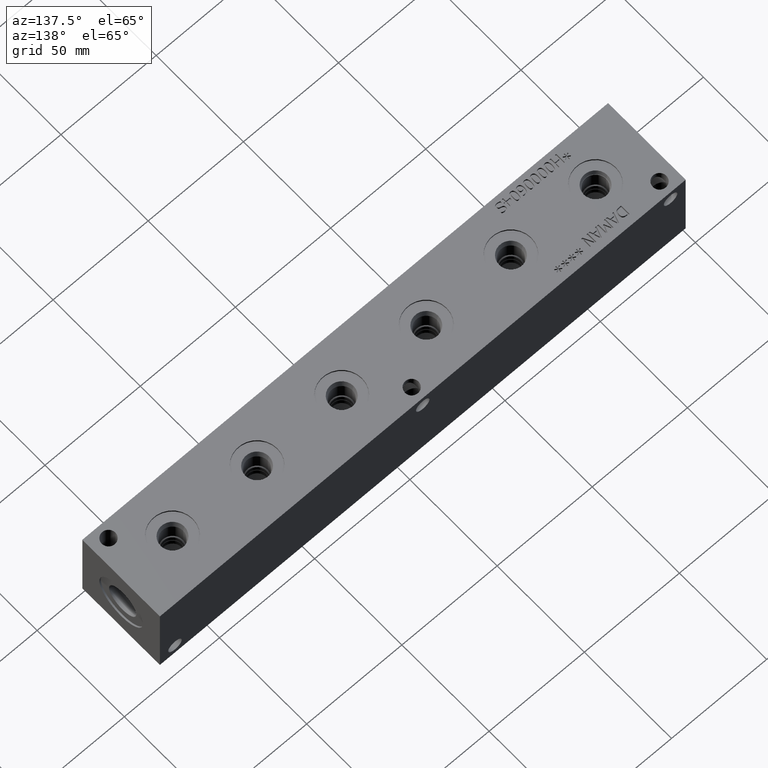
[diagram: clean part render]
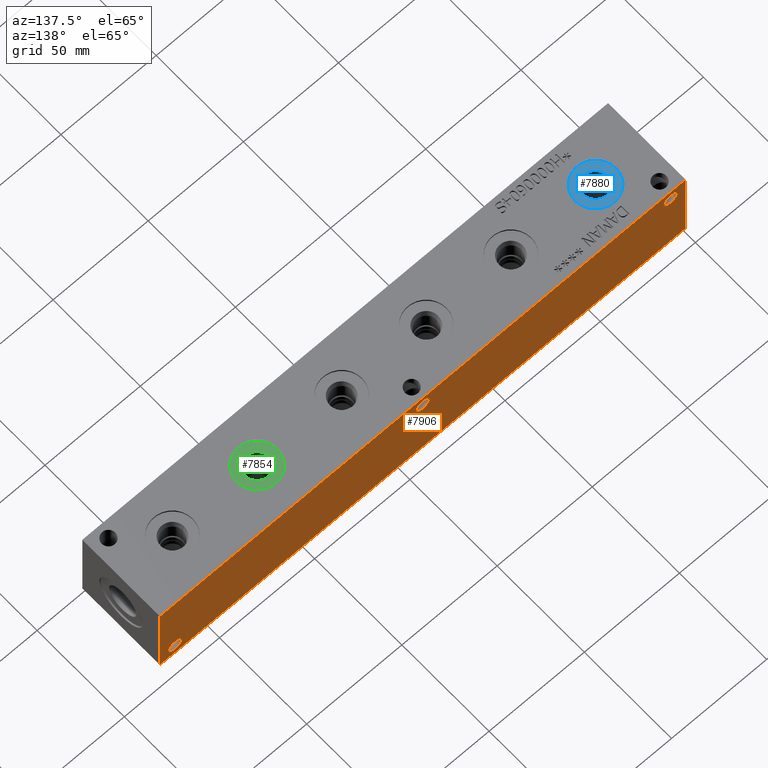
[diagram: same view with three faces highlighted in distinct colors, each labeled with its STEP entity id]
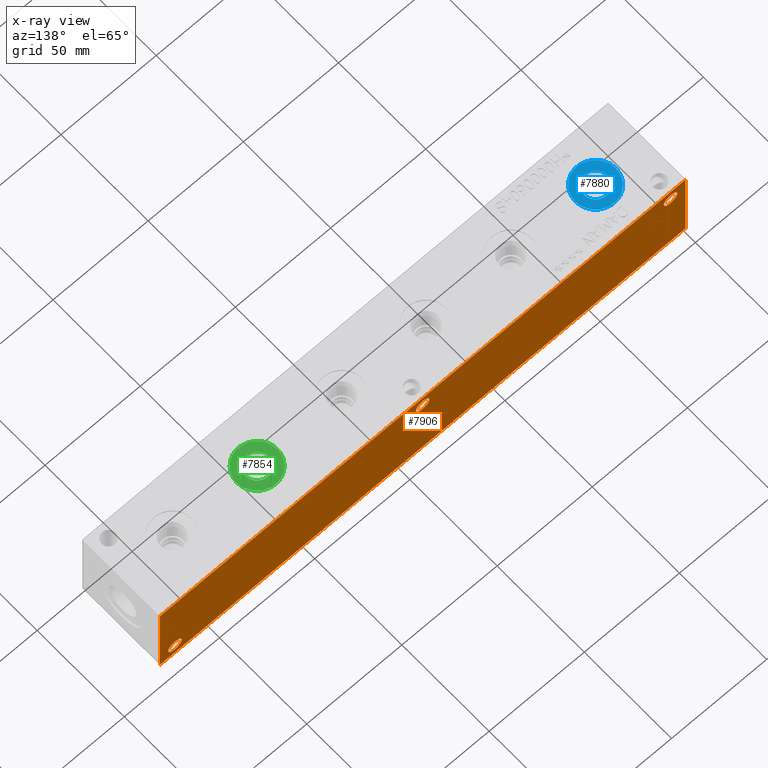
[diagram: x-ray of the same camera — body ghosted, the three highlighted faces saturated]
A machine part, auxiliary view with three faces highlighted in distinct colors.
The next image is the same camera in x-ray (body ghosted, the three faces saturated) — at least one of them is partly hidden behind the body in this view.
Their STEP definitions:

[orange] entity #7906 — the highlighted planar face has unit normal (0, 1, 0).
#129=CIRCLE('',#8153,3.5687);
#132=CIRCLE('',#8163,3.5687);
#135=CIRCLE('',#8172,3.5687);
#324=FACE_BOUND('',#1514,.T.);
#325=FACE_BOUND('',#1515,.T.);
#326=FACE_BOUND('',#1516,.T.);
#1048=FACE_OUTER_BOUND('',#1513,.T.);
#1513=EDGE_LOOP('',(#6948,#6949,#6950,#6951));
#1514=EDGE_LOOP('',(#6952));
#1515=EDGE_LOOP('',(#6953));
#1516=EDGE_LOOP('',(#6954));
#1775=LINE('',#12204,#2492);
#2239=LINE('',#13647,#2956);
#2240=LINE('',#13650,#2957);
#2241=LINE('',#13651,#2958);
#2492=VECTOR('',#8775,10.);
#2956=VECTOR('',#10065,10.);
#2957=VECTOR('',#10068,10.);
#2958=VECTOR('',#10069,10.);
#3254=VERTEX_POINT('',#12201);
#3255=VERTEX_POINT('',#12203);
#3540=VERTEX_POINT('',#13163);
#3545=VERTEX_POINT('',#13181);
#3550=VERTEX_POINT('',#13197);
#3692=VERTEX_POINT('',#13643);
#3694=VERTEX_POINT('',#13649);
#4133=EDGE_CURVE('',#3254,#3255,#1775,.T.);
#4554=EDGE_CURVE('',#3540,#3540,#129,.T.);
#4564=EDGE_CURVE('',#3545,#3545,#132,.T.);
#4573=EDGE_CURVE('',#3550,#3550,#135,.T.);
#4785=EDGE_CURVE('',#3692,#3255,#2239,.T.);
#4786=EDGE_CURVE('',#3694,#3692,#2240,.T.);
#4787=EDGE_CURVE('',#3694,#3254,#2241,.T.);
#6948=ORIENTED_EDGE('',*,*,#4786,.T.);
#6949=ORIENTED_EDGE('',*,*,#4785,.T.);
#6950=ORIENTED_EDGE('',*,*,#4133,.F.);
#6951=ORIENTED_EDGE('',*,*,#4787,.F.);
#6952=ORIENTED_EDGE('',*,*,#4554,.T.);
#6953=ORIENTED_EDGE('',*,*,#4564,.T.);
#6954=ORIENTED_EDGE('',*,*,#4573,.T.);
#7200=PLANE('',#8399);
#7906=ADVANCED_FACE('',(#1048,#324,#325,#326),#7200,.T.);
#8153=AXIS2_PLACEMENT_3D('',#13165,#9490,#9491);
#8163=AXIS2_PLACEMENT_3D('',#13183,#9513,#9514);
#8172=AXIS2_PLACEMENT_3D('',#13199,#9533,#9534);
#8399=AXIS2_PLACEMENT_3D('',#13648,#10066,#10067);
#8775=DIRECTION('',(-1.,0.,0.));
#9490=DIRECTION('center_axis',(0.,-1.,0.));
#9491=DIRECTION('ref_axis',(1.,0.,0.));
#9513=DIRECTION('center_axis',(0.,-1.,0.));
#9514=DIRECTION('ref_axis',(1.,0.,0.));
#9533=DIRECTION('center_axis',(0.,-1.,0.));
#9534=DIRECTION('ref_axis',(1.,0.,0.));
#10065=DIRECTION('',(0.,0.,1.));
#10066=DIRECTION('center_axis',(0.,1.,0.));
#10067=DIRECTION('ref_axis',(-1.,0.,0.));
#10068=DIRECTION('',(-1.,0.,0.));
#10069=DIRECTION('',(0.,0.,1.));
#12201=CARTESIAN_POINT('',(276.225,44.45,44.45));
#12203=CARTESIAN_POINT('',(0.,44.45,44.45));
#12204=CARTESIAN_POINT('',(276.225,44.45,44.45));
#13163=CARTESIAN_POINT('',(264.7061,44.45,6.35));
#13165=CARTESIAN_POINT('Origin',(268.2748,44.45,6.35));
#13181=CARTESIAN_POINT('',(4.3561,44.45,38.1));
#13183=CARTESIAN_POINT('Origin',(7.9248,44.45,38.1));
#13197=CARTESIAN_POINT('',(134.5565,44.45,38.1));
#13199=CARTESIAN_POINT('Origin',(138.1252,44.45,38.1));
#13643=CARTESIAN_POINT('',(0.,44.45,0.));
#13647=CARTESIAN_POINT('',(0.,44.45,0.));
#13648=CARTESIAN_POINT('Origin',(276.225,44.45,0.));
#13649=CARTESIAN_POINT('',(276.225,44.45,0.));
#13650=CARTESIAN_POINT('',(276.225,44.45,0.));
#13651=CARTESIAN_POINT('',(276.225,44.45,0.));

[blue] entity #7880 — the highlighted planar face has unit normal (0, 0, -1).
#223=CIRCLE('',#8327,10.6426);
#224=CIRCLE('',#8328,10.6426);
#225=CIRCLE('',#8330,6.1976);
#226=CIRCLE('',#8331,6.1976);
#318=FACE_BOUND('',#1482,.T.);
#1022=FACE_OUTER_BOUND('',#1481,.T.);
#1481=EDGE_LOOP('',(#6815,#6816));
#1482=EDGE_LOOP('',(#6817,#6818));
#3644=VERTEX_POINT('',#13502);
#3645=VERTEX_POINT('',#13504);
#3646=VERTEX_POINT('',#13508);
#3647=VERTEX_POINT('',#13509);
#4717=EDGE_CURVE('',#3644,#3645,#223,.T.);
#4718=EDGE_CURVE('',#3645,#3644,#224,.T.);
#4719=EDGE_CURVE('',#3646,#3647,#225,.T.);
#4720=EDGE_CURVE('',#3647,#3646,#226,.T.);
#6815=ORIENTED_EDGE('',*,*,#4718,.F.);
#6816=ORIENTED_EDGE('',*,*,#4717,.F.);
#6817=ORIENTED_EDGE('',*,*,#4719,.T.);
#6818=ORIENTED_EDGE('',*,*,#4720,.T.);
#7194=PLANE('',#8329);
#7880=ADVANCED_FACE('',(#1022,#318),#7194,.F.);
#8327=AXIS2_PLACEMENT_3D('',#13505,#9899,#9900);
#8328=AXIS2_PLACEMENT_3D('',#13506,#9901,#9902);
#8329=AXIS2_PLACEMENT_3D('',#13507,#9903,#9904);
#8330=AXIS2_PLACEMENT_3D('',#13510,#9905,#9906);
#8331=AXIS2_PLACEMENT_3D('',#13511,#9907,#9908);
#9899=DIRECTION('center_axis',(0.,0.,-1.));
#9900=DIRECTION('ref_axis',(1.,0.,0.));
#9901=DIRECTION('center_axis',(0.,0.,-1.));
#9902=DIRECTION('ref_axis',(1.,0.,0.));
#9903=DIRECTION('center_axis',(0.,0.,-1.));
#9904=DIRECTION('ref_axis',(-1.,0.,0.));
#9905=DIRECTION('center_axis',(0.,0.,-1.));
#9906=DIRECTION('ref_axis',(1.,0.,0.));
#9907=DIRECTION('center_axis',(0.,0.,-1.));
#9908=DIRECTION('ref_axis',(1.,0.,0.));
#13502=CARTESIAN_POINT('',(16.3322,22.225,43.6626));
#13504=CARTESIAN_POINT('',(37.6174,22.225,43.6626));
#13505=CARTESIAN_POINT('Origin',(26.9748,22.225,43.6626));
#13506=CARTESIAN_POINT('Origin',(26.9748,22.225,43.6626));
#13507=CARTESIAN_POINT('Origin',(33.1724,22.225,43.6626));
#13508=CARTESIAN_POINT('',(33.1724,22.225,43.6626));
#13509=CARTESIAN_POINT('',(20.7772,22.225,43.6626));
#13510=CARTESIAN_POINT('Origin',(26.9748,22.225,43.6626));
#13511=CARTESIAN_POINT('Origin',(26.9748,22.225,43.6626));

[green] entity #7854 — the highlighted planar face has unit normal (0, 0, 1).
#199=CIRCLE('',#8278,10.6426);
#200=CIRCLE('',#8279,10.6426);
#201=CIRCLE('',#8280,6.1976);
#312=FACE_BOUND('',#1450,.T.);
#996=FACE_OUTER_BOUND('',#1449,.T.);
#1449=EDGE_LOOP('',(#6700,#6701));
#1450=EDGE_LOOP('',(#6702));
#3615=VERTEX_POINT('',#13405);
#3616=VERTEX_POINT('',#13406);
#3617=VERTEX_POINT('',#13409);
#4673=EDGE_CURVE('',#3615,#3616,#199,.T.);
#4674=EDGE_CURVE('',#3616,#3615,#200,.T.);
#4675=EDGE_CURVE('',#3617,#3617,#201,.T.);
#6700=ORIENTED_EDGE('',*,*,#4673,.T.);
#6701=ORIENTED_EDGE('',*,*,#4674,.T.);
#6702=ORIENTED_EDGE('',*,*,#4675,.F.);
#7188=PLANE('',#8277);
#7854=ADVANCED_FACE('',(#996,#312),#7188,.T.);
#8277=AXIS2_PLACEMENT_3D('',#13404,#9779,#9780);
#8278=AXIS2_PLACEMENT_3D('',#13407,#9781,#9782);
#8279=AXIS2_PLACEMENT_3D('',#13408,#9783,#9784);
#8280=AXIS2_PLACEMENT_3D('',#13410,#9785,#9786);
#9779=DIRECTION('center_axis',(0.,0.,1.));
#9780=DIRECTION('ref_axis',(1.,0.,0.));
#9781=DIRECTION('center_axis',(0.,0.,1.));
#9782=DIRECTION('ref_axis',(1.,0.,0.));
#9783=DIRECTION('center_axis',(0.,0.,1.));
#9784=DIRECTION('ref_axis',(1.,0.,0.));
#9785=DIRECTION('center_axis',(0.,0.,1.));
#9786=DIRECTION('ref_axis',(1.,0.,0.));
#13404=CARTESIAN_POINT('Origin',(204.7748,22.225,43.6626));
#13405=CARTESIAN_POINT('',(215.4174,22.225,43.6626));
#13406=CARTESIAN_POINT('',(194.1322,22.225,43.6626));
#13407=CARTESIAN_POINT('Origin',(204.7748,22.225,43.6626));
#13408=CARTESIAN_POINT('Origin',(204.7748,22.225,43.6626));
#13409=CARTESIAN_POINT('',(198.5772,22.225,43.6626));
#13410=CARTESIAN_POINT('Origin',(204.7748,22.225,43.6626));